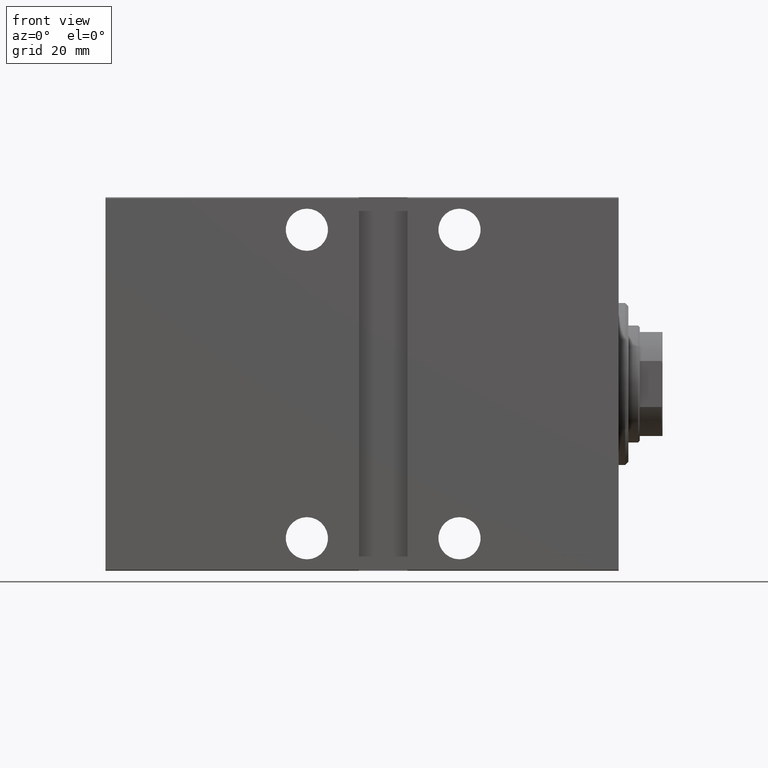
[diagram: clean part render]
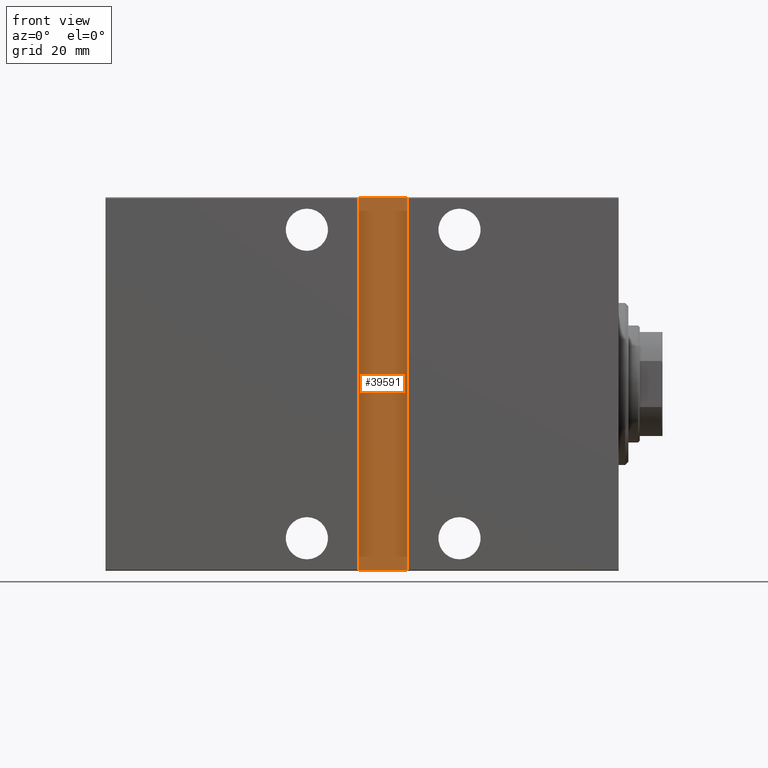
[diagram: same view with one face highlighted and labeled with its STEP entity id]
A machine part, front view. The second image highlights one B-rep face of the part: STEP entity #39591.
In plain terms, the highlighted planar face has unit normal (0, -1, -0).
Its self-contained STEP definition (entity closure, byte-faithful):
#663 = AXIS2_PLACEMENT_3D ( 'NONE', #25587, #42425, #21154 ) ;
#2303 = CARTESIAN_POINT ( 'NONE',  ( 65.00000000000001421, 40.00000000000000000, 57.50000000000000711 ) ) ;
#3861 = DIRECTION ( 'NONE',  ( 1.000000000000000000, 0.000000000000000000, 0.000000000000000000 ) ) ;
#4648 = VERTEX_POINT ( 'NONE', #5986 ) ;
#5986 = CARTESIAN_POINT ( 'NONE',  ( 65.00000000000000000, 40.00000000000000000, -57.50000000000000711 ) ) ;
#6356 = LINE ( 'NONE', #10551, #37180 ) ;
#7305 = EDGE_CURVE ( 'NONE', #13099, #4648, #8523, .T. ) ;
#8312 = FACE_OUTER_BOUND ( 'NONE', #39787, .T. ) ;
#8523 = LINE ( 'NONE', #2303, #43214 ) ;
#8675 = DIRECTION ( 'NONE',  ( -1.206764157201257045E-16, 0.000000000000000000, -1.000000000000000000 ) ) ;
#9270 = EDGE_CURVE ( 'NONE', #30920, #22871, #38609, .T. ) ;
#10551 = CARTESIAN_POINT ( 'NONE',  ( 65.00000000000000000, 40.00000000000000000, -57.50000000000000711 ) ) ;
#11353 = ORIENTED_EDGE ( 'NONE', *, *, #7305, .F. ) ;
#13099 = VERTEX_POINT ( 'NONE', #40120 ) ;
#14261 = CARTESIAN_POINT ( 'NONE',  ( 65.00000000000001421, 40.00000000000000000, 57.50000000000000711 ) ) ;
#15358 = VECTOR ( 'NONE', #3861, 1000.000000000000000 ) ;
#21154 = DIRECTION ( 'NONE',  ( 0.000000000000000000, -0.000000000000000000, 1.000000000000000000 ) ) ;
#22031 = DIRECTION ( 'NONE',  ( -1.206764157201257045E-16, 0.000000000000000000, -1.000000000000000000 ) ) ;
#22871 = VERTEX_POINT ( 'NONE', #29963 ) ;
#24115 = EDGE_CURVE ( 'NONE', #4648, #22871, #6356, .T. ) ;
#24934 = PLANE ( 'NONE',  #663 ) ;
#25520 = CARTESIAN_POINT ( 'NONE',  ( 80.00000000000000000, 40.00000000000000000, 57.50000000000000711 ) ) ;
#25587 = CARTESIAN_POINT ( 'NONE',  ( 0.000000000000000000, 40.00000000000000000, 0.000000000000000000 ) ) ;
#28221 = EDGE_CURVE ( 'NONE', #13099, #30920, #40856, .T. ) ;
#28952 = ORIENTED_EDGE ( 'NONE', *, *, #24115, .F. ) ;
#29963 = CARTESIAN_POINT ( 'NONE',  ( 80.00000000000000000, 39.99999999999999289, -57.50000000000000711 ) ) ;
#30920 = VERTEX_POINT ( 'NONE', #39558 ) ;
#36423 = ORIENTED_EDGE ( 'NONE', *, *, #28221, .T. ) ;
#37180 = VECTOR ( 'NONE', #43359, 1000.000000000000000 ) ;
#38609 = LINE ( 'NONE', #25520, #43272 ) ;
#39077 = ORIENTED_EDGE ( 'NONE', *, *, #9270, .T. ) ;
#39558 = CARTESIAN_POINT ( 'NONE',  ( 80.00000000000000000, 40.00000000000000000, 57.50000000000000711 ) ) ;
#39591 = ADVANCED_FACE ( 'NONE', ( #8312 ), #24934, .T. ) ;
#39787 = EDGE_LOOP ( 'NONE', ( #28952, #11353, #36423, #39077 ) ) ;
#40120 = CARTESIAN_POINT ( 'NONE',  ( 65.00000000000001421, 40.00000000000000000, 57.50000000000000711 ) ) ;
#40856 = LINE ( 'NONE', #14261, #15358 ) ;
#42425 = DIRECTION ( 'NONE',  ( -0.000000000000000000, 1.000000000000000000, 0.000000000000000000 ) ) ;
#43214 = VECTOR ( 'NONE', #22031, 1000.000000000000000 ) ;
#43272 = VECTOR ( 'NONE', #8675, 1000.000000000000000 ) ;
#43359 = DIRECTION ( 'NONE',  ( 1.000000000000000000, 0.000000000000000000, 0.000000000000000000 ) ) ;